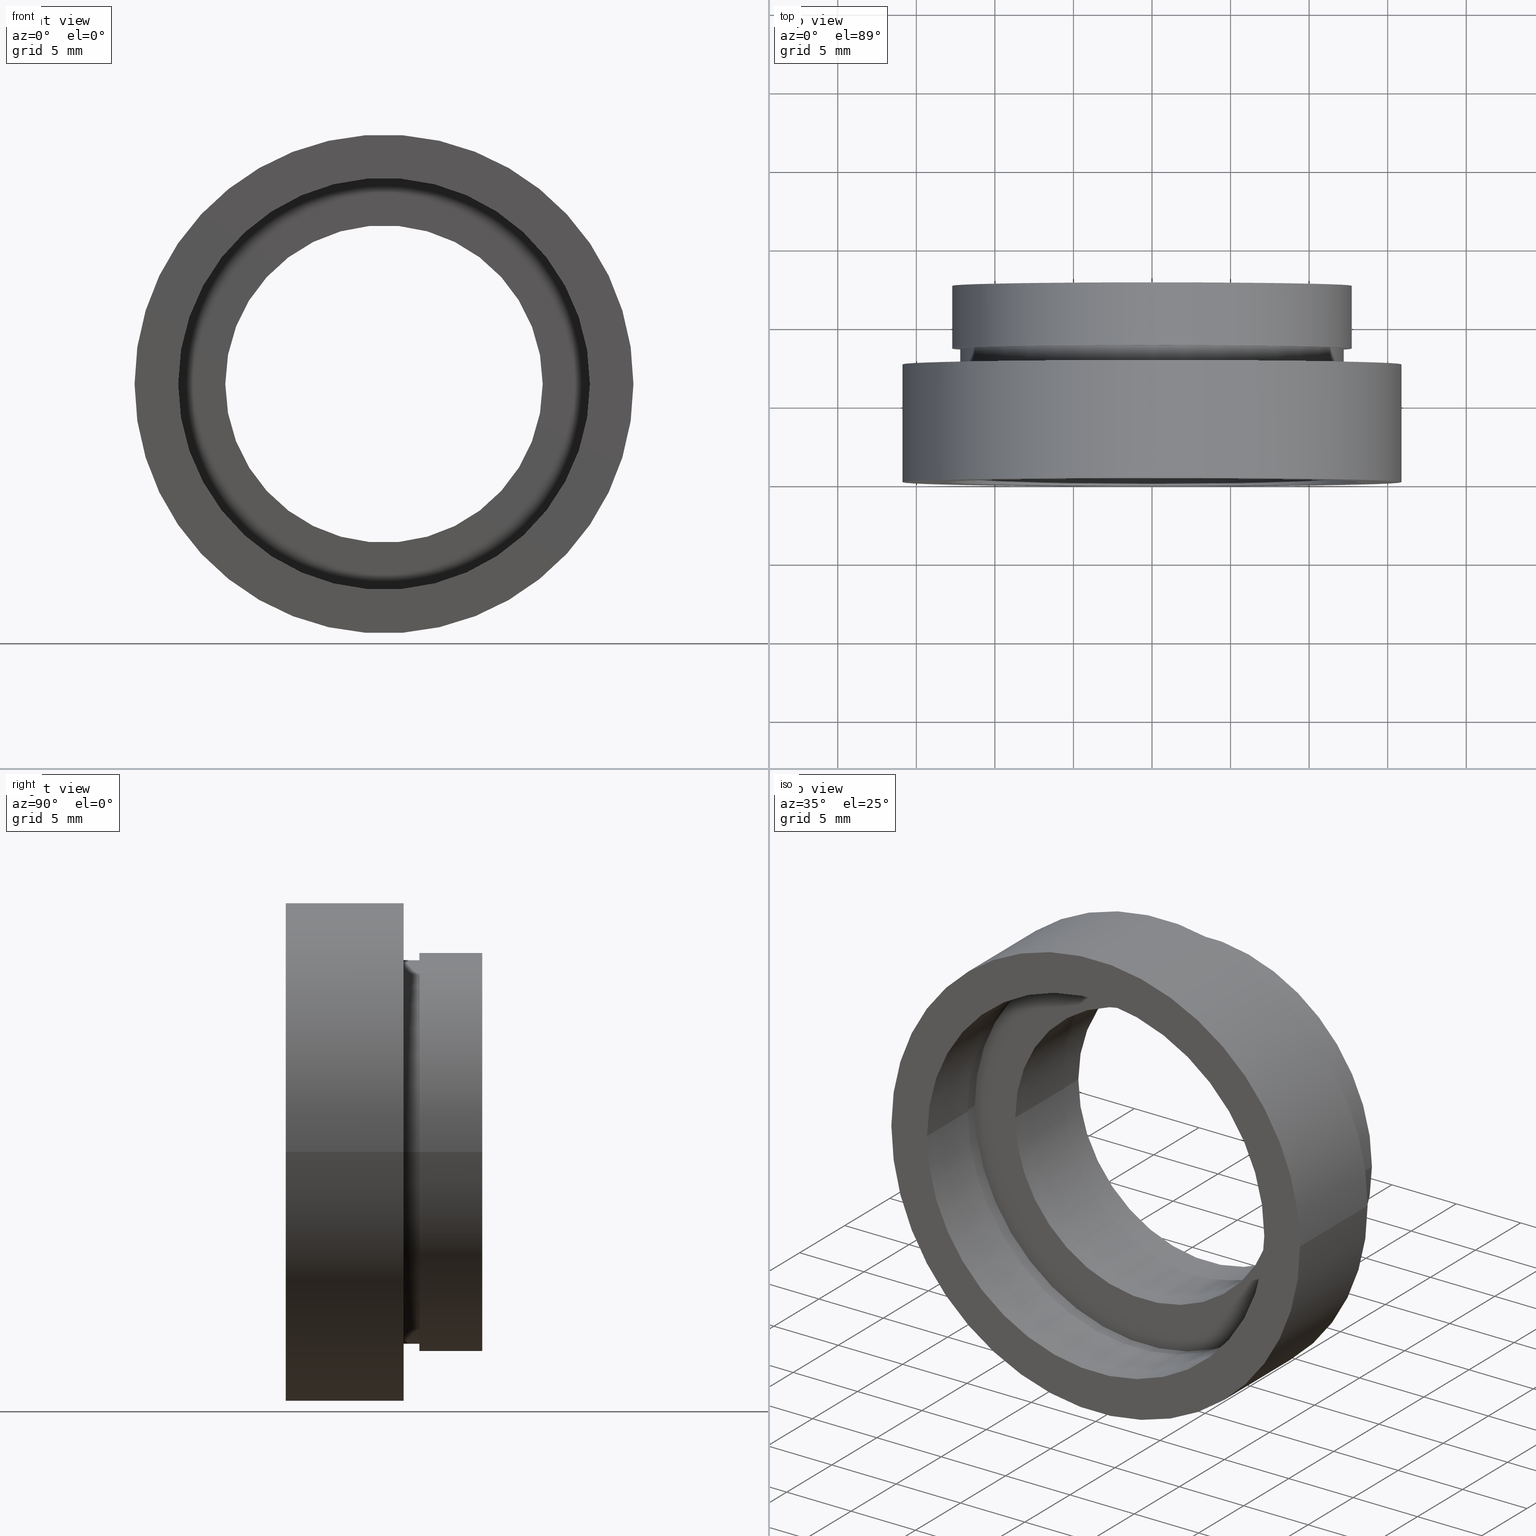
[diagram: canonical four-view strip — front | top / right | iso, engineering-drawing reading convention]
A machine part, canonical four-view strip (front | top / right | iso — engineering-drawing reading convention). The complete STEP part file that produces these views, byte-faithful:
ISO-10303-21;
HEADER;
FILE_DESCRIPTION (( 'STEP AP214' ),
    '1' );
FILE_NAME ('504123.STEP',
    '2019-10-09T01:25:20',
    ( '' ),
    ( '' ),
    'SwSTEP 2.0',
    'SolidWorks 2016',
    '' );
FILE_SCHEMA (( 'AUTOMOTIVE_DESIGN' ));
ENDSEC;

DATA;
#1 = SURFACE_STYLE_FILL_AREA ( #496 ) ;
#2 = EDGE_CURVE ( 'NONE', #27, #429, #486, .T. ) ;
#3 = DIRECTION ( 'NONE',  ( 0.0000000000000000000, 0.0000000000000000000, 1.000000000000000000 ) ) ;
#4 = SURFACE_STYLE_FILL_AREA ( #494 ) ;
#5 = COLOUR_RGB ( '',1.000000000000000000, 1.000000000000000000, 1.000000000000000000 ) ;
#6 = DIRECTION ( 'NONE',  ( -1.224646799147351000E-016, 1.000000000000000000, -0.0000000000000000000 ) ) ;
#7 = CARTESIAN_POINT ( 'NONE',  ( 10.10000000000000100, 5.499999999999997300, 1.236893267138826600E-015 ) ) ;
#8 = PRESENTATION_LAYER_ASSIGNMENT (  '', '', ( #334 ) ) ;
#9 = ORIENTED_EDGE ( 'NONE', *, *, #276, .T. ) ;
#10 = CARTESIAN_POINT ( 'NONE',  ( 0.0000000000000000000, 16.88601823708207700, 0.0000000000000000000 ) ) ;
#11 = DIRECTION ( 'NONE',  ( -1.224646799147351000E-016, 1.000000000000000000, -0.0000000000000000000 ) ) ;
#12 = ADVANCED_FACE ( 'NONE', ( #354 ), #20, .T. ) ;
#13 =( NAMED_UNIT ( * ) PLANE_ANGLE_UNIT ( ) SI_UNIT ( $, .RADIAN. ) );
#14 = FILL_AREA_STYLE_COLOUR ( '', #5 ) ;
#15 = DIRECTION ( 'NONE',  ( -1.224646799147351000E-016, 1.000000000000000000, -0.0000000000000000000 ) ) ;
#16 = CARTESIAN_POINT ( 'NONE',  ( 0.0000000000000000000, 16.88601823708207700, 0.0000000000000000000 ) ) ;
#17 =( GEOMETRIC_REPRESENTATION_CONTEXT ( 3 ) GLOBAL_UNCERTAINTY_ASSIGNED_CONTEXT ( ( #417 ) ) GLOBAL_UNIT_ASSIGNED_CONTEXT ( ( #120, #13, #398 ) ) REPRESENTATION_CONTEXT ( 'NONE', 'WORKASPACE' ) );
#18 = PRESENTATION_STYLE_ASSIGNMENT (( #330 ) ) ;
#19 = CARTESIAN_POINT ( 'NONE',  ( 5.371323195044473300E-016, 12.49999999999999600, 0.0000000000000000000 ) ) ;
#20 = CYLINDRICAL_SURFACE ( 'NONE', #343, 12.70999999999999900 ) ;
#21 = CARTESIAN_POINT ( 'NONE',  ( 12.70999999999999900, 16.88601823708207700, 1.556526081716285800E-015 ) ) ;
#22 = CIRCLE ( 'NONE', #285, 12.71000000000000100 ) ;
#23 = AXIS2_PLACEMENT_3D ( 'NONE', #38, #42, #43 ) ;
#24 = DIRECTION ( 'NONE',  ( -1.000000000000000000, 0.0000000000000000000, 0.0000000000000000000 ) ) ;
#25 = DIRECTION ( 'NONE',  ( 1.000000000000000000, 1.224646799147351000E-016, 0.0000000000000000000 ) ) ;
#26 = CIRCLE ( 'NONE', #406, 12.70999999999999900 ) ;
#27 = VERTEX_POINT ( 'NONE', #160 ) ;
#28 = SURFACE_STYLE_USAGE ( .BOTH. , #227 ) ;
#29 = VERTEX_POINT ( 'NONE', #447 ) ;
#30 = SURFACE_SIDE_STYLE ('',( #473 ) ) ;
#31 = CARTESIAN_POINT ( 'NONE',  ( 13.24999999999999800, 16.88601823708207700, 1.622657008870242700E-015 ) ) ;
#32 = DIRECTION ( 'NONE',  ( -1.224646799147351000E-016, 1.000000000000000000, -0.0000000000000000000 ) ) ;
#33 = ORIENTED_EDGE ( 'NONE', *, *, #399, .F. ) ;
#34 = EDGE_CURVE ( 'NONE', #257, #322, #510, .T. ) ;
#35 = FACE_OUTER_BOUND ( 'NONE', #303, .T. ) ;
#36 = EDGE_CURVE ( 'NONE', #482, #181, #284, .T. ) ;
#37 = FACE_OUTER_BOUND ( 'NONE', #87, .T. ) ;
#38 = CARTESIAN_POINT ( 'NONE',  ( 1.149455719078122700E-015, 7.499999999999998200, 0.0000000000000000000 ) ) ;
#39 = EDGE_LOOP ( 'NONE', ( #509, #400, #483, #504 ) ) ;
#40 = CARTESIAN_POINT ( 'NONE',  ( 1.516849758822328500E-015, 4.499999999999995600, 0.0000000000000000000 ) ) ;
#41 = AXIS2_PLACEMENT_3D ( 'NONE', #567, #419, #92 ) ;
#42 = DIRECTION ( 'NONE',  ( -1.224646799147351000E-016, 1.000000000000000000, -0.0000000000000000000 ) ) ;
#43 = DIRECTION ( 'NONE',  ( -1.000000000000000000, -1.421904488505579700E-016, 0.0000000000000000000 ) ) ;
#44 = VERTEX_POINT ( 'NONE', #164 ) ;
#45 = ORIENTED_EDGE ( 'NONE', *, *, #159, .T. ) ;
#46 = APPLICATION_PROTOCOL_DEFINITION ( 'draft international standard', 'automotive_design', 1998, #154 ) ;
#47 = EDGE_CURVE ( 'NONE', #155, #258, #526, .T. ) ;
#48 = DIRECTION ( 'NONE',  ( -1.224646799147351000E-016, 1.000000000000000000, -0.0000000000000000000 ) ) ;
#49 = DIRECTION ( 'NONE',  ( -1.224646799147351000E-016, 1.000000000000000000, -0.0000000000000000000 ) ) ;
#50 = CIRCLE ( 'NONE', #511, 12.19999999999999900 ) ;
#51 = DIRECTION ( 'NONE',  ( -1.224646799147351000E-016, 1.000000000000000000, -0.0000000000000000000 ) ) ;
#52 = AXIS2_PLACEMENT_3D ( 'NONE', #387, #49, #618 ) ;
#53 = UNCERTAINTY_MEASURE_WITH_UNIT (LENGTH_MEASURE( 1.000000000000000100E-005 ), #533, 'distance_accuracy_value', 'NONE');
#54 = ADVANCED_FACE ( 'NONE', ( #35 ), #365, .T. ) ;
#55 = CYLINDRICAL_SURFACE ( 'NONE', #109, 12.70999999999999900 ) ;
#56 = ORIENTED_EDGE ( 'NONE', *, *, #606, .F. ) ;
#57 =( NAMED_UNIT ( * ) PLANE_ANGLE_UNIT ( ) SI_UNIT ( $, .RADIAN. ) );
#58 = FILL_AREA_STYLE ('',( #14 ) ) ;
#59 = DIRECTION ( 'NONE',  ( -1.000000000000000000, 0.0000000000000000000, 0.0000000000000000000 ) ) ;
#60 = ADVANCED_FACE ( 'NONE', ( #147, #179 ), #220, .F. ) ;
#61 = AXIS2_PLACEMENT_3D ( 'NONE', #302, #350, #425 ) ;
#62 = ORIENTED_EDGE ( 'NONE', *, *, #193, .F. ) ;
#63 = ORIENTED_EDGE ( 'NONE', *, *, #528, .T. ) ;
#64 =( LENGTH_UNIT ( ) NAMED_UNIT ( * ) SI_UNIT ( .MILLI., .METRE. ) );
#65 = CARTESIAN_POINT ( 'NONE',  ( 0.0000000000000000000, 16.88601823708207700, 0.0000000000000000000 ) ) ;
#66 = CYLINDRICAL_SURFACE ( 'NONE', #185, 13.10000000000000000 ) ;
#67 = EDGE_CURVE ( 'NONE', #44, #361, #319, .T. ) ;
#68 = VECTOR ( 'NONE', #229, 1000.000000000000000 ) ;
#69 = CARTESIAN_POINT ( 'NONE',  ( 12.20000000000000100, 7.500000000000000000, 1.494069094959770900E-015 ) ) ;
#70 =( NAMED_UNIT ( * ) PLANE_ANGLE_UNIT ( ) SI_UNIT ( $, .RADIAN. ) );
#71 = EDGE_CURVE ( 'NONE', #438, #591, #107, .T. ) ;
#72 = LINE ( 'NONE', #290, #548 ) ;
#73 = ORIENTED_EDGE ( 'NONE', *, *, #403, .F. ) ;
#74 = ORIENTED_EDGE ( 'NONE', *, *, #495, .T. ) ;
#75 = PLANE ( 'NONE',  #355 ) ;
#76 =( LENGTH_UNIT ( ) NAMED_UNIT ( * ) SI_UNIT ( .MILLI., .METRE. ) );
#77 = DIRECTION ( 'NONE',  ( -1.224646799147351000E-016, 1.000000000000000000, -0.0000000000000000000 ) ) ;
#78 = AXIS2_PLACEMENT_3D ( 'NONE', #581, #502, #369 ) ;
#79 = DIRECTION ( 'NONE',  ( 1.224646799147351000E-016, -1.000000000000000000, 0.0000000000000000000 ) ) ;
#80 = ORIENTED_EDGE ( 'NONE', *, *, #572, .F. ) ;
#81 = ORIENTED_EDGE ( 'NONE', *, *, #410, .F. ) ;
#82 = AXIS2_PLACEMENT_3D ( 'NONE', #549, #329, #174 ) ;
#83 = FACE_OUTER_BOUND ( 'NONE', #223, .T. ) ;
#84 = CIRCLE ( 'NONE', #41, 13.25000000000000000 ) ;
#85 = MANIFOLD_SOLID_BREP ( '��ת1', #235 ) ;
#86 = ORIENTED_EDGE ( 'NONE', *, *, #379, .F. ) ;
#87 = EDGE_LOOP ( 'NONE', ( #231, #90 ) ) ;
#88 = ADVANCED_FACE ( 'NONE', ( #357, #37 ), #274, .F. ) ;
#89 = PRESENTATION_LAYER_ASSIGNMENT (  '', '', ( #263 ) ) ;
#90 = ORIENTED_EDGE ( 'NONE', *, *, #193, .T. ) ;
#91 = CARTESIAN_POINT ( 'NONE',  ( 15.87500000000000000, -1.944126793646428200E-016, 0.0000000000000000000 ) ) ;
#92 = DIRECTION ( 'NONE',  ( -1.000000000000000000, -1.309225264888156400E-016, 0.0000000000000000000 ) ) ;
#93 = DIRECTION ( 'NONE',  ( -1.000000000000000000, -1.421904488505579700E-016, 0.0000000000000000000 ) ) ;
#94 = UNCERTAINTY_MEASURE_WITH_UNIT (LENGTH_MEASURE( 1.000000000000000100E-005 ), #404, 'distance_accuracy_value', 'NONE');
#95 = EDGE_LOOP ( 'NONE', ( #288, #337 ) ) ;
#96 = EDGE_CURVE ( 'NONE', #466, #29, #130, .T. ) ;
#97 = PRESENTATION_LAYER_ASSIGNMENT (  '', '', ( #176 ) ) ;
#98 = ADVANCED_FACE ( 'NONE', ( #336 ), #545, .F. ) ;
#99 = DIRECTION ( 'NONE',  ( -1.000000000000000000, -8.587739980083203700E-017, 0.0000000000000000000 ) ) ;
#100 = LINE ( 'NONE', #21, #68 ) ;
#101 = AXIS2_PLACEMENT_3D ( 'NONE', #230, #77, #358 ) ;
#102 = ORIENTED_EDGE ( 'NONE', *, *, #507, .T. ) ;
#103 = FILL_AREA_STYLE_COLOUR ( '', #541 ) ;
#104 = CARTESIAN_POINT ( 'NONE',  ( 1.516849758822328500E-015, 4.499999999999995600, 0.0000000000000000000 ) ) ;
#105 = ORIENTED_EDGE ( 'NONE', *, *, #470, .F. ) ;
#106 = AXIS2_PLACEMENT_3D ( 'NONE', #213, #585, #589 ) ;
#107 = CIRCLE ( 'NONE', #82, 12.70999999999999900 ) ;
#108 = DIRECTION ( 'NONE',  ( -1.000000000000000000, -2.185478394931410600E-016, 0.0000000000000000000 ) ) ;
#109 = AXIS2_PLACEMENT_3D ( 'NONE', #225, #599, #24 ) ;
#110 = DIRECTION ( 'NONE',  ( -1.000000000000000000, -1.309225264888156400E-016, 0.0000000000000000000 ) ) ;
#111 = VERTEX_POINT ( 'NONE', #362 ) ;
#112 = DIRECTION ( 'NONE',  ( 1.224646799147351000E-016, -1.000000000000000000, 0.0000000000000000000 ) ) ;
#113 = DIRECTION ( 'NONE',  ( -1.000000000000000000, -1.092739197465705300E-016, 0.0000000000000000000 ) ) ;
#114 = FACE_OUTER_BOUND ( 'NONE', #538, .T. ) ;
#115 = DIRECTION ( 'NONE',  ( -1.224646799147351000E-016, 1.000000000000000000, -0.0000000000000000000 ) ) ;
#116 = PRESENTATION_LAYER_ASSIGNMENT (  '', '', ( #238 ) ) ;
#117 = DIRECTION ( 'NONE',  ( -1.000000000000000000, 0.0000000000000000000, 0.0000000000000000000 ) ) ;
#118 = VERTEX_POINT ( 'NONE', #7 ) ;
#119 = CARTESIAN_POINT ( 'NONE',  ( 13.10000000000000100, 1.604287306883029700E-015, 1.604287306883032600E-015 ) ) ;
#120 =( LENGTH_UNIT ( ) NAMED_UNIT ( * ) SI_UNIT ( .MILLI., .METRE. ) );
#121 = CARTESIAN_POINT ( 'NONE',  ( 0.0000000000000000000, 16.88601823708207700, 0.0000000000000000000 ) ) ;
#122 = CARTESIAN_POINT ( 'NONE',  ( 15.87500000000000000, 16.88601823708208000, 1.944126793646423200E-015 ) ) ;
#123 = CARTESIAN_POINT ( 'NONE',  ( 15.87500000000000000, 7.500000000000000000, 1.944126793646423200E-015 ) ) ;
#124 = DIRECTION ( 'NONE',  ( 1.000000000000000000, 1.224646799147351000E-016, 0.0000000000000000000 ) ) ;
#125 = ORIENTED_EDGE ( 'NONE', *, *, #441, .F. ) ;
#126 = ORIENTED_EDGE ( 'NONE', *, *, #291, .F. ) ;
#127 = CARTESIAN_POINT ( 'NONE',  ( 5.371323195044473300E-016, 12.49999999999999600, 0.0000000000000000000 ) ) ;
#128 = EDGE_CURVE ( 'NONE', #429, #361, #413, .T. ) ;
#129 = AXIS2_PLACEMENT_3D ( 'NONE', #127, #503, #316 ) ;
#130 = CIRCLE ( 'NONE', #458, 12.19999999999999900 ) ;
#131 = EDGE_CURVE ( 'NONE', #195, #583, #385, .T. ) ;
#132 = CIRCLE ( 'NONE', #52, 15.87499999999999600 ) ;
#133 = STYLED_ITEM ( 'NONE', ( #607 ), #148 ) ;
#134 = ORIENTED_EDGE ( 'NONE', *, *, #441, .T. ) ;
#135 = ADVANCED_BREP_SHAPE_REPRESENTATION ( '504123', ( #85, #368 ), #198 ) ;
#136 = COLOUR_RGB ( '',1.000000000000000000, 1.000000000000000000, 1.000000000000000000 ) ;
#137 = EDGE_CURVE ( 'NONE', #118, #531, #620, .T. ) ;
#138 = VECTOR ( 'NONE', #388, 1000.000000000000000 ) ;
#139 = EDGE_LOOP ( 'NONE', ( #360, #134, #45, #624 ) ) ;
#140 = ORIENTED_EDGE ( 'NONE', *, *, #204, .F. ) ;
#141 = FILL_AREA_STYLE ('',( #103 ) ) ;
#142 = CARTESIAN_POINT ( 'NONE',  ( 13.10000000000000000, 16.88601823708207700, 1.604287306883032600E-015 ) ) ;
#143 = STYLED_ITEM ( 'NONE', ( #18 ), #437 ) ;
#144 = CARTESIAN_POINT ( 'NONE',  ( -12.19999999999999800, 7.499999999999996400, 0.0000000000000000000 ) ) ;
#145 = DIRECTION ( 'NONE',  ( -1.224646799147351000E-016, 1.000000000000000000, -0.0000000000000000000 ) ) ;
#146 = MECHANICAL_DESIGN_GEOMETRIC_PRESENTATION_REPRESENTATION (  '', ( #238 ), #182 ) ;
#147 = FACE_BOUND ( 'NONE', #186, .T. ) ;
#148 = ADVANCED_FACE ( 'NONE', ( #460 ), #183, .F. ) ;
#149 = CARTESIAN_POINT ( 'NONE',  ( -10.09999999999999800, 5.499999999999995600, 0.0000000000000000000 ) ) ;
#150 = PRODUCT_RELATED_PRODUCT_CATEGORY ( 'part', '', ( #177 ) ) ;
#151 = CARTESIAN_POINT ( 'NONE',  ( -13.09999999999999800, 4.499999999999993800, 0.0000000000000000000 ) ) ;
#152 = VECTOR ( 'NONE', #527, 1000.000000000000000 ) ;
#153 = ORIENTED_EDGE ( 'NONE', *, *, #490, .T. ) ;
#154 = APPLICATION_CONTEXT ( 'automotive_design' ) ;
#155 = VERTEX_POINT ( 'NONE', #484 ) ;
#156 = CARTESIAN_POINT ( 'NONE',  ( 5.371323195044474300E-016, 12.49999999999999600, 0.0000000000000000000 ) ) ;
#157 = ADVANCED_FACE ( 'NONE', ( #328 ), #335, .F. ) ;
#158 = DIRECTION ( 'NONE',  ( -1.224646799147351000E-016, 1.000000000000000000, -0.0000000000000000000 ) ) ;
#159 = EDGE_CURVE ( 'NONE', #467, #29, #617, .T. ) ;
#160 = CARTESIAN_POINT ( 'NONE',  ( -15.87499999999999300, -5.413573745600033100E-015, 0.0000000000000000000 ) ) ;
#161 = AXIS2_PLACEMENT_3D ( 'NONE', #104, #477, #202 ) ;
#162 = CARTESIAN_POINT ( 'NONE',  ( 1.149455719078122700E-015, 7.499999999999998200, 0.0000000000000000000 ) ) ;
#163 = CIRCLE ( 'NONE', #433, 12.19999999999999900 ) ;
#164 = CARTESIAN_POINT ( 'NONE',  ( 15.87500000000000000, -1.525320158307194900E-015, 1.944126793646423200E-015 ) ) ;
#165 = VECTOR ( 'NONE', #48, 1000.000000000000000 ) ;
#166 = AXIS2_PLACEMENT_3D ( 'NONE', #401, #215, #308 ) ;
#167 = FILL_AREA_STYLE_COLOUR ( '', #418 ) ;
#168 = AXIS2_PLACEMENT_3D ( 'NONE', #489, #535, #314 ) ;
#169 = SURFACE_SIDE_STYLE ('',( #588 ) ) ;
#170 = LINE ( 'NONE', #142, #608 ) ;
#171 = EDGE_LOOP ( 'NONE', ( #602, #564 ) ) ;
#172 = CARTESIAN_POINT ( 'NONE',  ( 12.71000000000000300, 12.49999999999999800, 1.556526081716286200E-015 ) ) ;
#173 = ORIENTED_EDGE ( 'NONE', *, *, #376, .F. ) ;
#174 = DIRECTION ( 'NONE',  ( -1.000000000000000000, -1.364849312334230700E-016, 0.0000000000000000000 ) ) ;
#175 =( LENGTH_UNIT ( ) NAMED_UNIT ( * ) SI_UNIT ( .MILLI., .METRE. ) );
#176 = STYLED_ITEM ( 'NONE', ( #444 ), #305 ) ;
#177 = PRODUCT ( '504123', '504123', '', ( #214 ) ) ;
#178 =( NAMED_UNIT ( * ) PLANE_ANGLE_UNIT ( ) SI_UNIT ( $, .RADIAN. ) );
#179 = FACE_OUTER_BOUND ( 'NONE', #565, .T. ) ;
#180 = FACE_OUTER_BOUND ( 'NONE', #211, .T. ) ;
#181 = VERTEX_POINT ( 'NONE', #259 ) ;
#182 =( GEOMETRIC_REPRESENTATION_CONTEXT ( 3 ) GLOBAL_UNCERTAINTY_ASSIGNED_CONTEXT ( ( #256 ) ) GLOBAL_UNIT_ASSIGNED_CONTEXT ( ( #175, #409, #325 ) ) REPRESENTATION_CONTEXT ( 'NONE', 'WORKASPACE' ) );
#183 = CYLINDRICAL_SURFACE ( 'NONE', #598, 13.10000000000000000 ) ;
#184 = FACE_OUTER_BOUND ( 'NONE', #203, .T. ) ;
#185 = AXIS2_PLACEMENT_3D ( 'NONE', #221, #554, #448 ) ;
#186 = EDGE_LOOP ( 'NONE', ( #140, #125 ) ) ;
#187 = ORIENTED_EDGE ( 'NONE', *, *, #528, .F. ) ;
#188 = SURFACE_SIDE_STYLE ('',( #578 ) ) ;
#189 = CARTESIAN_POINT ( 'NONE',  ( -15.87500000000000000, 7.499999999999996400, 0.0000000000000000000 ) ) ;
#190 = FACE_OUTER_BOUND ( 'NONE', #139, .T. ) ;
#191 = LINE ( 'NONE', #31, #345 ) ;
#192 =( NAMED_UNIT ( * ) PLANE_ANGLE_UNIT ( ) SI_UNIT ( $, .RADIAN. ) );
#193 = EDGE_CURVE ( 'NONE', #322, #257, #22, .T. ) ;
#194 = COLOUR_RGB ( '',1.000000000000000000, 1.000000000000000000, 1.000000000000000000 ) ;
#195 = VERTEX_POINT ( 'NONE', #309 ) ;
#196 = ORIENTED_EDGE ( 'NONE', *, *, #490, .F. ) ;
#197 = CARTESIAN_POINT ( 'NONE',  ( 10.10000000000000000, 12.49999999999999800, 1.236893267138826600E-015 ) ) ;
#198 =( GEOMETRIC_REPRESENTATION_CONTEXT ( 3 ) GLOBAL_UNCERTAINTY_ASSIGNED_CONTEXT ( ( #241 ) ) GLOBAL_UNIT_ASSIGNED_CONTEXT ( ( #356, #57, #389 ) ) REPRESENTATION_CONTEXT ( 'NONE', 'WORKASPACE' ) );
#199 = PRESENTATION_STYLE_ASSIGNMENT (( #450 ) ) ;
#200 = PRESENTATION_LAYER_ASSIGNMENT (  '', '', ( #133 ) ) ;
#201 = CARTESIAN_POINT ( 'NONE',  ( 1.394385078907593200E-015, 5.499999999999996400, 0.0000000000000000000 ) ) ;
#202 = DIRECTION ( 'NONE',  ( -1.000000000000000000, -1.324216393875425300E-016, 0.0000000000000000000 ) ) ;
#203 = EDGE_LOOP ( 'NONE', ( #80, #313 ) ) ;
#204 = EDGE_CURVE ( 'NONE', #467, #391, #50, .T. ) ;
#205 = ORIENTED_EDGE ( 'NONE', *, *, #410, .T. ) ;
#206 = SURFACE_STYLE_USAGE ( .BOTH. , #426 ) ;
#207 = ADVANCED_FACE ( 'NONE', ( #506, #114 ), #488, .F. ) ;
#208 = MECHANICAL_DESIGN_GEOMETRIC_PRESENTATION_REPRESENTATION (  '', ( #176 ), #442 ) ;
#209 = DIRECTION ( 'NONE',  ( -1.000000000000000000, 0.0000000000000000000, 0.0000000000000000000 ) ) ;
#210 = ORIENTED_EDGE ( 'NONE', *, *, #461, .T. ) ;
#211 = EDGE_LOOP ( 'NONE', ( #196, #332 ) ) ;
#212 = SURFACE_SIDE_STYLE ('',( #574 ) ) ;
#213 = CARTESIAN_POINT ( 'NONE',  ( 5.371323195044474300E-016, 12.49999999999999600, 0.0000000000000000000 ) ) ;
#214 = PRODUCT_CONTEXT ( 'NONE', #154, 'mechanical' ) ;
#215 = DIRECTION ( 'NONE',  ( -1.224646799147351000E-016, 1.000000000000000000, -0.0000000000000000000 ) ) ;
#216 = CYLINDRICAL_SURFACE ( 'NONE', #381, 13.24999999999999800 ) ;
#217 =( NAMED_UNIT ( * ) PLANE_ANGLE_UNIT ( ) SI_UNIT ( $, .RADIAN. ) );
#218 = STYLED_ITEM ( 'NONE', ( #199 ), #12 ) ;
#219 = PRESENTATION_STYLE_ASSIGNMENT (( #372 ) ) ;
#220 = PLANE ( 'NONE',  #333 ) ;
#221 = CARTESIAN_POINT ( 'NONE',  ( 0.0000000000000000000, 16.88601823708207700, 0.0000000000000000000 ) ) ;
#222 = DIRECTION ( 'NONE',  ( -1.224646799147351000E-016, 1.000000000000000000, -0.0000000000000000000 ) ) ;
#223 = EDGE_LOOP ( 'NONE', ( #373, #310, #432, #81 ) ) ;
#224 = EDGE_LOOP ( 'NONE', ( #275, #295 ) ) ;
#225 = CARTESIAN_POINT ( 'NONE',  ( 0.0000000000000000000, 16.88601823708207700, 0.0000000000000000000 ) ) ;
#226 = DIRECTION ( 'NONE',  ( -1.224646799147351000E-016, 1.000000000000000000, -0.0000000000000000000 ) ) ;
#227 = SURFACE_SIDE_STYLE ('',( #4 ) ) ;
#228 = FILL_AREA_STYLE ('',( #499 ) ) ;
#229 = DIRECTION ( 'NONE',  ( -1.224646799147351000E-016, 1.000000000000000000, -0.0000000000000000000 ) ) ;
#230 = CARTESIAN_POINT ( 'NONE',  ( 0.0000000000000000000, 16.88601823708207700, 0.0000000000000000000 ) ) ;
#231 = ORIENTED_EDGE ( 'NONE', *, *, #34, .T. ) ;
#232 = PRODUCT_DEFINITION ( 'δ֪', '', #476, #237 ) ;
#233 = CYLINDRICAL_SURFACE ( 'NONE', #532, 15.87500000000000000 ) ;
#234 = FACE_BOUND ( 'NONE', #301, .T. ) ;
#235 = CLOSED_SHELL ( 'NONE', ( #242, #253, #359, #437, #250, #305, #435, #148, #207, #157, #346, #98, #88, #12, #430, #307, #60, #54 ) ) ;
#236 = ORIENTED_EDGE ( 'NONE', *, *, #2, .T. ) ;
#237 = PRODUCT_DEFINITION_CONTEXT ( 'detailed design', #315, 'design' ) ;
#238 = STYLED_ITEM ( 'NONE', ( #219 ), #85 ) ;
#239 = CYLINDRICAL_SURFACE ( 'NONE', #394, 12.19999999999999900 ) ;
#240 = DIRECTION ( 'NONE',  ( -1.000000000000000000, -1.224646799147351000E-016, 0.0000000000000000000 ) ) ;
#241 = UNCERTAINTY_MEASURE_WITH_UNIT (LENGTH_MEASURE( 1.000000000000000100E-005 ), #356, 'distance_accuracy_value', 'NONE');
#242 = ADVANCED_FACE ( 'NONE', ( #544 ), #233, .T. ) ;
#243 = AXIS2_PLACEMENT_3D ( 'NONE', #40, #468, #421 ) ;
#244 = EDGE_LOOP ( 'NONE', ( #570, #609, #525, #382 ) ) ;
#245 = CARTESIAN_POINT ( 'NONE',  ( 1.026991039163387700E-015, 8.499999999999998200, 0.0000000000000000000 ) ) ;
#246 = CARTESIAN_POINT ( 'NONE',  ( 0.0000000000000000000, 0.0000000000000000000, 0.0000000000000000000 ) ) ;
#247 = STYLED_ITEM ( 'NONE', ( #264 ), #98 ) ;
#248 = LINE ( 'NONE', #344, #152 ) ;
#249 = ORIENTED_EDGE ( 'NONE', *, *, #563, .T. ) ;
#250 = ADVANCED_FACE ( 'NONE', ( #521 ), #216, .F. ) ;
#251 = AXIS2_PLACEMENT_3D ( 'NONE', #434, #586, #304 ) ;
#252 = CARTESIAN_POINT ( 'NONE',  ( 1.149455719078122700E-015, 7.499999999999998200, 0.0000000000000000000 ) ) ;
#253 = ADVANCED_FACE ( 'NONE', ( #487 ), #471, .T. ) ;
#254 = CIRCLE ( 'NONE', #611, 13.10000000000000000 ) ;
#255 =( NAMED_UNIT ( * ) SI_UNIT ( $, .STERADIAN. ) SOLID_ANGLE_UNIT ( ) );
#256 = UNCERTAINTY_MEASURE_WITH_UNIT (LENGTH_MEASURE( 1.000000000000000100E-005 ), #175, 'distance_accuracy_value', 'NONE');
#257 = VERTEX_POINT ( 'NONE', #272 ) ;
#258 = VERTEX_POINT ( 'NONE', #119 ) ;
#259 = CARTESIAN_POINT ( 'NONE',  ( -10.10000000000000000, 12.49999999999999500, 0.0000000000000000000 ) ) ;
#260 = PRESENTATION_STYLE_ASSIGNMENT (( #371 ) ) ;
#261 = CARTESIAN_POINT ( 'NONE',  ( 1.149455719078122700E-015, 7.499999999999998200, 0.0000000000000000000 ) ) ;
#262 = EDGE_CURVE ( 'NONE', #583, #342, #191, .T. ) ;
#263 = STYLED_ITEM ( 'NONE', ( #422 ), #135 ) ;
#264 = PRESENTATION_STYLE_ASSIGNMENT (( #497 ) ) ;
#265 = DIRECTION ( 'NONE',  ( -1.224646799147351000E-016, 1.000000000000000000, -0.0000000000000000000 ) ) ;
#266 = CIRCLE ( 'NONE', #23, 12.19999999999999900 ) ;
#267 = ORIENTED_EDGE ( 'NONE', *, *, #268, .F. ) ;
#268 = EDGE_CURVE ( 'NONE', #195, #287, #395, .T. ) ;
#269 =( NAMED_UNIT ( * ) PLANE_ANGLE_UNIT ( ) SI_UNIT ( $, .RADIAN. ) );
#270 = AXIS2_PLACEMENT_3D ( 'NONE', #19, #15, #595 ) ;
#271 = FILL_AREA_STYLE_COLOUR ( '', #348 ) ;
#272 = CARTESIAN_POINT ( 'NONE',  ( -12.71000000000000100, 12.49999999999999500, 0.0000000000000000000 ) ) ;
#273 = CIRCLE ( 'NONE', #161, 13.10000000000000000 ) ;
#274 = PLANE ( 'NONE',  #424 ) ;
#275 = ORIENTED_EDGE ( 'NONE', *, *, #363, .F. ) ;
#276 = EDGE_CURVE ( 'NONE', #438, #322, #100, .T. ) ;
#277 = DIRECTION ( 'NONE',  ( -1.000000000000000000, -1.224646799147351000E-016, 0.0000000000000000000 ) ) ;
#278 = DIRECTION ( 'NONE',  ( -1.000000000000000000, -1.421904488505579700E-016, 0.0000000000000000000 ) ) ;
#279 = SURFACE_SIDE_STYLE ('',( #501 ) ) ;
#280 = FACE_OUTER_BOUND ( 'NONE', #171, .T. ) ;
#281 = VECTOR ( 'NONE', #451, 1000.000000000000000 ) ;
#282 = ORIENTED_EDGE ( 'NONE', *, *, #262, .T. ) ;
#283 = MECHANICAL_DESIGN_GEOMETRIC_PRESENTATION_REPRESENTATION (  '', ( #247 ), #317 ) ;
#284 = CIRCLE ( 'NONE', #270, 10.10000000000000000 ) ;
#285 = AXIS2_PLACEMENT_3D ( 'NONE', #156, #397, #481 ) ;
#286 = VECTOR ( 'NONE', #298, 1000.000000000000000 ) ;
#287 = VERTEX_POINT ( 'NONE', #498 ) ;
#288 = ORIENTED_EDGE ( 'NONE', *, *, #470, .T. ) ;
#289 = DIRECTION ( 'NONE',  ( -1.224646799147351000E-016, 1.000000000000000000, -0.0000000000000000000 ) ) ;
#290 = CARTESIAN_POINT ( 'NONE',  ( -13.10000000000000000, 16.88601823708207700, 0.0000000000000000000 ) ) ;
#291 = EDGE_CURVE ( 'NONE', #591, #257, #556, .T. ) ;
#292 =( NAMED_UNIT ( * ) SI_UNIT ( $, .STERADIAN. ) SOLID_ANGLE_UNIT ( ) );
#293 = MECHANICAL_DESIGN_GEOMETRIC_PRESENTATION_REPRESENTATION (  '', ( #263 ), #364 ) ;
#294 = COLOUR_RGB ( '',1.000000000000000000, 1.000000000000000000, 1.000000000000000000 ) ;
#295 = ORIENTED_EDGE ( 'NONE', *, *, #36, .F. ) ;
#296 = DIRECTION ( 'NONE',  ( -1.000000000000000000, -1.364849312334230700E-016, 0.0000000000000000000 ) ) ;
#297 =( GEOMETRIC_REPRESENTATION_CONTEXT ( 3 ) GLOBAL_UNCERTAINTY_ASSIGNED_CONTEXT ( ( #619 ) ) GLOBAL_UNIT_ASSIGNED_CONTEXT ( ( #76, #269, #596 ) ) REPRESENTATION_CONTEXT ( 'NONE', 'WORKASPACE' ) );
#298 = DIRECTION ( 'NONE',  ( -1.224646799147351000E-016, 1.000000000000000000, -0.0000000000000000000 ) ) ;
#299 = VECTOR ( 'NONE', #553, 1000.000000000000000 ) ;
#300 = CARTESIAN_POINT ( 'NONE',  ( 10.10000000000000000, 16.88601823708207700, 1.236893267138826600E-015 ) ) ;
#301 = EDGE_LOOP ( 'NONE', ( #408, #210 ) ) ;
#302 = CARTESIAN_POINT ( 'NONE',  ( 2.067940818438636500E-015, -3.469446951953614200E-015, 0.0000000000000000000 ) ) ;
#303 = EDGE_LOOP ( 'NONE', ( #560, #102, #236, #187 ) ) ;
#304 = DIRECTION ( 'NONE',  ( 1.000000000000000000, 1.224646799147351000E-016, 0.0000000000000000000 ) ) ;
#305 = ADVANCED_FACE ( 'NONE', ( #83 ), #66, .F. ) ;
#306 = AXIS2_PLACEMENT_3D ( 'NONE', #536, #393, #209 ) ;
#307 = ADVANCED_FACE ( 'NONE', ( #190 ), #239, .T. ) ;
#308 = DIRECTION ( 'NONE',  ( -1.000000000000000000, -8.587739980083203700E-017, 0.0000000000000000000 ) ) ;
#309 = CARTESIAN_POINT ( 'NONE',  ( -13.24999999999999600, 4.499999999999993800, 0.0000000000000000000 ) ) ;
#310 = ORIENTED_EDGE ( 'NONE', *, *, #399, .T. ) ;
#311 = CARTESIAN_POINT ( 'NONE',  ( 0.0000000000000000000, 16.88601823708207700, 0.0000000000000000000 ) ) ;
#312 = AXIS2_PLACEMENT_3D ( 'NONE', #311, #318, #445 ) ;
#313 = ORIENTED_EDGE ( 'NONE', *, *, #71, .F. ) ;
#314 = DIRECTION ( 'NONE',  ( -1.000000000000000000, -1.224646799147351000E-016, 0.0000000000000000000 ) ) ;
#315 = APPLICATION_CONTEXT ( 'automotive_design' ) ;
#316 = DIRECTION ( 'NONE',  ( -1.000000000000000000, -1.717547996016640700E-016, 0.0000000000000000000 ) ) ;
#317 =( GEOMETRIC_REPRESENTATION_CONTEXT ( 3 ) GLOBAL_UNCERTAINTY_ASSIGNED_CONTEXT ( ( #459 ) ) GLOBAL_UNIT_ASSIGNED_CONTEXT ( ( #453, #178, #505 ) ) REPRESENTATION_CONTEXT ( 'NONE', 'WORKASPACE' ) );
#318 = DIRECTION ( 'NONE',  ( -1.224646799147351000E-016, 1.000000000000000000, -0.0000000000000000000 ) ) ;
#319 = LINE ( 'NONE', #122, #299 ) ;
#320 = CARTESIAN_POINT ( 'NONE',  ( 0.0000000000000000000, 16.88601823708207700, 0.0000000000000000000 ) ) ;
#321 = FACE_OUTER_BOUND ( 'NONE', #244, .T. ) ;
#322 = VERTEX_POINT ( 'NONE', #172 ) ;
#323 = CARTESIAN_POINT ( 'NONE',  ( 10.10000000000000100, 5.499999999999998200, 0.0000000000000000000 ) ) ;
#324 = ORIENTED_EDGE ( 'NONE', *, *, #291, .T. ) ;
#325 =( NAMED_UNIT ( * ) SI_UNIT ( $, .STERADIAN. ) SOLID_ANGLE_UNIT ( ) );
#326 = DIRECTION ( 'NONE',  ( -1.224646799147351000E-016, 1.000000000000000000, -0.0000000000000000000 ) ) ;
#327 = CARTESIAN_POINT ( 'NONE',  ( 10.10000000000000000, 12.49999999999999800, 0.0000000000000000000 ) ) ;
#328 = FACE_OUTER_BOUND ( 'NONE', #39, .T. ) ;
#329 = DIRECTION ( 'NONE',  ( -1.224646799147351000E-016, 1.000000000000000000, -0.0000000000000000000 ) ) ;
#330 = SURFACE_STYLE_USAGE ( .BOTH. , #279 ) ;
#331 = EDGE_LOOP ( 'NONE', ( #153, #449, #378, #594 ) ) ;
#332 = ORIENTED_EDGE ( 'NONE', *, *, #507, .F. ) ;
#333 = AXIS2_PLACEMENT_3D ( 'NONE', #396, #112, #25 ) ;
#334 = STYLED_ITEM ( 'NONE', ( #260 ), #359 ) ;
#335 = CYLINDRICAL_SURFACE ( 'NONE', #306, 13.24999999999999800 ) ;
#336 = FACE_OUTER_BOUND ( 'NONE', #341, .T. ) ;
#337 = ORIENTED_EDGE ( 'NONE', *, *, #137, .T. ) ;
#338 = CARTESIAN_POINT ( 'NONE',  ( 1.516849758822328500E-015, 4.499999999999995600, 0.0000000000000000000 ) ) ;
#339 = CARTESIAN_POINT ( 'NONE',  ( 12.71000000000000100, 8.500000000000000000, 0.0000000000000000000 ) ) ;
#340 = CARTESIAN_POINT ( 'NONE',  ( 12.20000000000000100, 8.500000000000000000, 1.494069094959770900E-015 ) ) ;
#341 = EDGE_LOOP ( 'NONE', ( #56, #105, #249, #569 ) ) ;
#342 = VERTEX_POINT ( 'NONE', #367 ) ;
#343 = AXIS2_PLACEMENT_3D ( 'NONE', #121, #222, #117 ) ;
#344 = CARTESIAN_POINT ( 'NONE',  ( -10.10000000000000000, 16.88601823708207700, 0.0000000000000000000 ) ) ;
#345 = VECTOR ( 'NONE', #402, 1000.000000000000000 ) ;
#346 = ADVANCED_FACE ( 'NONE', ( #280, #543 ), #75, .F. ) ;
#347 = CARTESIAN_POINT ( 'NONE',  ( -15.87500000000000000, 16.88601823708207300, 0.0000000000000000000 ) ) ;
#348 = COLOUR_RGB ( '',1.000000000000000000, 1.000000000000000000, 1.000000000000000000 ) ;
#349 = MECHANICAL_DESIGN_GEOMETRIC_PRESENTATION_REPRESENTATION (  '', ( #218 ), #17 ) ;
#350 = DIRECTION ( 'NONE',  ( -1.224646799147351000E-016, 1.000000000000000000, -0.0000000000000000000 ) ) ;
#351 = EDGE_LOOP ( 'NONE', ( #386, #9, #455, #126 ) ) ;
#352 = ORIENTED_EDGE ( 'NONE', *, *, #593, .F. ) ;
#353 = CARTESIAN_POINT ( 'NONE',  ( 12.19999999999999900, 16.88601823708207700, 1.494069094959770900E-015 ) ) ;
#354 = FACE_OUTER_BOUND ( 'NONE', #415, .T. ) ;
#355 = AXIS2_PLACEMENT_3D ( 'NONE', #323, #370, #277 ) ;
#356 =( LENGTH_UNIT ( ) NAMED_UNIT ( * ) SI_UNIT ( .MILLI., .METRE. ) );
#357 = FACE_BOUND ( 'NONE', #224, .T. ) ;
#358 = DIRECTION ( 'NONE',  ( -1.000000000000000000, 0.0000000000000000000, 0.0000000000000000000 ) ) ;
#359 = ADVANCED_FACE ( 'NONE', ( #478 ), #55, .T. ) ;
#360 = ORIENTED_EDGE ( 'NONE', *, *, #524, .F. ) ;
#361 = VERTEX_POINT ( 'NONE', #123 ) ;
#362 = CARTESIAN_POINT ( 'NONE',  ( 13.10000000000000100, 4.499999999999997300, 1.604287306883032600E-015 ) ) ;
#363 = EDGE_CURVE ( 'NONE', #181, #482, #514, .T. ) ;
#364 =( GEOMETRIC_REPRESENTATION_CONTEXT ( 3 ) GLOBAL_UNCERTAINTY_ASSIGNED_CONTEXT ( ( #53 ) ) GLOBAL_UNIT_ASSIGNED_CONTEXT ( ( #533, #571, #292 ) ) REPRESENTATION_CONTEXT ( 'NONE', 'WORKASPACE' ) );
#365 = CYLINDRICAL_SURFACE ( 'NONE', #312, 15.87500000000000000 ) ;
#366 = UNCERTAINTY_MEASURE_WITH_UNIT (LENGTH_MEASURE( 1.000000000000000100E-005 ), #64, 'distance_accuracy_value', 'NONE');
#367 = CARTESIAN_POINT ( 'NONE',  ( 13.25000000000000400, 5.499999999999998200, 1.622657008870243100E-015 ) ) ;
#368 = AXIS2_PLACEMENT_3D ( 'NONE', #246, #3, #392 ) ;
#369 = DIRECTION ( 'NONE',  ( -1.000000000000000000, 0.0000000000000000000, 0.0000000000000000000 ) ) ;
#370 = DIRECTION ( 'NONE',  ( -1.224646799147351000E-016, 1.000000000000000000, 0.0000000000000000000 ) ) ;
#371 = SURFACE_STYLE_USAGE ( .BOTH. , #547 ) ;
#372 = SURFACE_STYLE_USAGE ( .BOTH. , #30 ) ;
#373 = ORIENTED_EDGE ( 'NONE', *, *, #461, .F. ) ;
#374 = PRESENTATION_LAYER_ASSIGNMENT (  '', '', ( #143 ) ) ;
#375 =( LENGTH_UNIT ( ) NAMED_UNIT ( * ) SI_UNIT ( .MILLI., .METRE. ) );
#376 = EDGE_CURVE ( 'NONE', #29, #466, #163, .T. ) ;
#377 = LINE ( 'NONE', #353, #286 ) ;
#378 = ORIENTED_EDGE ( 'NONE', *, *, #128, .F. ) ;
#379 = EDGE_CURVE ( 'NONE', #111, #577, #523, .T. ) ;
#380 = DIRECTION ( 'NONE',  ( -1.000000000000000000, -1.224646799147351000E-016, 0.0000000000000000000 ) ) ;
#381 = AXIS2_PLACEMENT_3D ( 'NONE', #16, #115, #534 ) ;
#382 = ORIENTED_EDGE ( 'NONE', *, *, #563, .F. ) ;
#383 = DIRECTION ( 'NONE',  ( -1.224646799147351000E-016, 1.000000000000000000, -0.0000000000000000000 ) ) ;
#384 = EDGE_CURVE ( 'NONE', #287, #342, #84, .T. ) ;
#385 = CIRCLE ( 'NONE', #621, 13.24999999999999800 ) ;
#386 = ORIENTED_EDGE ( 'NONE', *, *, #572, .T. ) ;
#387 = CARTESIAN_POINT ( 'NONE',  ( 2.067940818438636500E-015, -3.469446951953614200E-015, 0.0000000000000000000 ) ) ;
#388 = DIRECTION ( 'NONE',  ( -1.224646799147351000E-016, 1.000000000000000000, -0.0000000000000000000 ) ) ;
#389 =( NAMED_UNIT ( * ) SI_UNIT ( $, .STERADIAN. ) SOLID_ANGLE_UNIT ( ) );
#390 = ORIENTED_EDGE ( 'NONE', *, *, #47, .F. ) ;
#391 = VERTEX_POINT ( 'NONE', #69 ) ;
#392 = DIRECTION ( 'NONE',  ( 1.000000000000000000, 0.0000000000000000000, 0.0000000000000000000 ) ) ;
#393 = DIRECTION ( 'NONE',  ( -1.224646799147351000E-016, 1.000000000000000000, -0.0000000000000000000 ) ) ;
#394 = AXIS2_PLACEMENT_3D ( 'NONE', #320, #597, #592 ) ;
#395 = LINE ( 'NONE', #452, #512 ) ;
#396 = CARTESIAN_POINT ( 'NONE',  ( 12.20000000000000100, 7.500000000000000000, 0.0000000000000000000 ) ) ;
#397 = DIRECTION ( 'NONE',  ( -1.224646799147351000E-016, 1.000000000000000000, -0.0000000000000000000 ) ) ;
#398 =( NAMED_UNIT ( * ) SI_UNIT ( $, .STERADIAN. ) SOLID_ANGLE_UNIT ( ) );
#399 = EDGE_CURVE ( 'NONE', #258, #111, #170, .T. ) ;
#400 = ORIENTED_EDGE ( 'NONE', *, *, #131, .F. ) ;
#401 = CARTESIAN_POINT ( 'NONE',  ( 1.394385078907593200E-015, 5.499999999999996400, 0.0000000000000000000 ) ) ;
#402 = DIRECTION ( 'NONE',  ( -1.224646799147351000E-016, 1.000000000000000000, -0.0000000000000000000 ) ) ;
#403 = EDGE_CURVE ( 'NONE', #583, #195, #475, .T. ) ;
#404 =( LENGTH_UNIT ( ) NAMED_UNIT ( * ) SI_UNIT ( .MILLI., .METRE. ) );
#405 = CIRCLE ( 'NONE', #61, 15.87499999999999600 ) ;
#406 = AXIS2_PLACEMENT_3D ( 'NONE', #472, #51, #296 ) ;
#407 = ORIENTED_EDGE ( 'NONE', *, *, #524, .T. ) ;
#408 = ORIENTED_EDGE ( 'NONE', *, *, #47, .T. ) ;
#409 =( NAMED_UNIT ( * ) PLANE_ANGLE_UNIT ( ) SI_UNIT ( $, .RADIAN. ) );
#410 = EDGE_CURVE ( 'NONE', #155, #577, #72, .T. ) ;
#411 = ORIENTED_EDGE ( 'NONE', *, *, #376, .T. ) ;
#412 =( GEOMETRIC_REPRESENTATION_CONTEXT ( 3 ) GLOBAL_UNCERTAINTY_ASSIGNED_CONTEXT ( ( #366 ) ) GLOBAL_UNIT_ASSIGNED_CONTEXT ( ( #64, #217, #255 ) ) REPRESENTATION_CONTEXT ( 'NONE', 'WORKASPACE' ) );
#413 = CIRCLE ( 'NONE', #587, 15.87500000000000000 ) ;
#414 = EDGE_LOOP ( 'NONE', ( #352, #86 ) ) ;
#415 = EDGE_LOOP ( 'NONE', ( #439, #561, #324, #62 ) ) ;
#416 = DIRECTION ( 'NONE',  ( -1.224646799147351000E-016, 1.000000000000000000, -0.0000000000000000000 ) ) ;
#417 = UNCERTAINTY_MEASURE_WITH_UNIT (LENGTH_MEASURE( 1.000000000000000100E-005 ), #120, 'distance_accuracy_value', 'NONE');
#418 = COLOUR_RGB ( '',1.000000000000000000, 1.000000000000000000, 1.000000000000000000 ) ;
#419 = DIRECTION ( 'NONE',  ( -1.224646799147351000E-016, 1.000000000000000000, -0.0000000000000000000 ) ) ;
#420 =( GEOMETRIC_REPRESENTATION_CONTEXT ( 3 ) GLOBAL_UNCERTAINTY_ASSIGNED_CONTEXT ( ( #603 ) ) GLOBAL_UNIT_ASSIGNED_CONTEXT ( ( #375, #192, #519 ) ) REPRESENTATION_CONTEXT ( 'NONE', 'WORKASPACE' ) );
#421 = DIRECTION ( 'NONE',  ( -1.000000000000000000, -1.309225264888156400E-016, 0.0000000000000000000 ) ) ;
#422 = PRESENTATION_STYLE_ASSIGNMENT (( #206 ) ) ;
#423 = ORIENTED_EDGE ( 'NONE', *, *, #204, .T. ) ;
#424 = AXIS2_PLACEMENT_3D ( 'NONE', #327, #79, #124 ) ;
#425 = DIRECTION ( 'NONE',  ( -1.000000000000000000, -1.224646799147350700E-016, 0.0000000000000000000 ) ) ;
#426 = SURFACE_SIDE_STYLE ('',( #559 ) ) ;
#427 = DIRECTION ( 'NONE',  ( -1.000000000000000000, -1.092739197465705300E-016, 0.0000000000000000000 ) ) ;
#428 = FACE_BOUND ( 'NONE', #551, .T. ) ;
#429 = VERTEX_POINT ( 'NONE', #189 ) ;
#430 = ADVANCED_FACE ( 'NONE', ( #184, #428 ), #469, .F. ) ;
#431 = CARTESIAN_POINT ( 'NONE',  ( -12.70999999999999700, 8.499999999999996400, 0.0000000000000000000 ) ) ;
#432 = ORIENTED_EDGE ( 'NONE', *, *, #379, .T. ) ;
#433 = AXIS2_PLACEMENT_3D ( 'NONE', #245, #416, #93 ) ;
#434 = CARTESIAN_POINT ( 'NONE',  ( 13.10000000000000100, 4.499999999999997300, 0.0000000000000000000 ) ) ;
#435 = ADVANCED_FACE ( 'NONE', ( #180, #234 ), #612, .F. ) ;
#436 = SURFACE_STYLE_USAGE ( .BOTH. , #212 ) ;
#437 = ADVANCED_FACE ( 'NONE', ( #321 ), #508, .F. ) ;
#438 = VERTEX_POINT ( 'NONE', #615 ) ;
#439 = ORIENTED_EDGE ( 'NONE', *, *, #276, .F. ) ;
#440 = CARTESIAN_POINT ( 'NONE',  ( 1.516849758822328500E-015, 4.499999999999995600, 0.0000000000000000000 ) ) ;
#441 = EDGE_CURVE ( 'NONE', #391, #467, #266, .T. ) ;
#442 =( GEOMETRIC_REPRESENTATION_CONTEXT ( 3 ) GLOBAL_UNCERTAINTY_ASSIGNED_CONTEXT ( ( #94 ) ) GLOBAL_UNIT_ASSIGNED_CONTEXT ( ( #404, #70, #557 ) ) REPRESENTATION_CONTEXT ( 'NONE', 'WORKASPACE' ) );
#443 = CARTESIAN_POINT ( 'NONE',  ( -12.19999999999999900, 16.88601823708207700, 0.0000000000000000000 ) ) ;
#444 = PRESENTATION_STYLE_ASSIGNMENT (( #28 ) ) ;
#445 = DIRECTION ( 'NONE',  ( -1.000000000000000000, -2.185478394931410600E-016, 0.0000000000000000000 ) ) ;
#446 = CARTESIAN_POINT ( 'NONE',  ( -12.70999999999999900, 16.88601823708207700, 0.0000000000000000000 ) ) ;
#447 = CARTESIAN_POINT ( 'NONE',  ( -12.19999999999999800, 8.499999999999996400, 0.0000000000000000000 ) ) ;
#448 = DIRECTION ( 'NONE',  ( -1.000000000000000000, 0.0000000000000000000, 0.0000000000000000000 ) ) ;
#449 = ORIENTED_EDGE ( 'NONE', *, *, #67, .T. ) ;
#450 = SURFACE_STYLE_USAGE ( .BOTH. , #188 ) ;
#451 = DIRECTION ( 'NONE',  ( -1.224646799147351000E-016, 1.000000000000000000, -0.0000000000000000000 ) ) ;
#452 = CARTESIAN_POINT ( 'NONE',  ( -13.24999999999999800, 16.88601823708207700, 0.0000000000000000000 ) ) ;
#453 =( LENGTH_UNIT ( ) NAMED_UNIT ( * ) SI_UNIT ( .MILLI., .METRE. ) );
#454 = AXIS2_PLACEMENT_3D ( 'NONE', #518, #289, #614 ) ;
#455 = ORIENTED_EDGE ( 'NONE', *, *, #34, .F. ) ;
#456 = ORIENTED_EDGE ( 'NONE', *, *, #593, .T. ) ;
#457 = DIRECTION ( 'NONE',  ( -1.224646799147351000E-016, 1.000000000000000000, 0.0000000000000000000 ) ) ;
#458 = AXIS2_PLACEMENT_3D ( 'NONE', #555, #226, #278 ) ;
#459 = UNCERTAINTY_MEASURE_WITH_UNIT (LENGTH_MEASURE( 1.000000000000000100E-005 ), #453, 'distance_accuracy_value', 'NONE');
#460 = FACE_OUTER_BOUND ( 'NONE', #601, .T. ) ;
#461 = EDGE_CURVE ( 'NONE', #258, #155, #254, .T. ) ;
#462 = ORIENTED_EDGE ( 'NONE', *, *, #96, .T. ) ;
#463 = ORIENTED_EDGE ( 'NONE', *, *, #159, .F. ) ;
#464 = AXIS2_PLACEMENT_3D ( 'NONE', #252, #6, #427 ) ;
#465 = DIRECTION ( 'NONE',  ( -1.000000000000000000, -1.324216393875425300E-016, 0.0000000000000000000 ) ) ;
#466 = VERTEX_POINT ( 'NONE', #340 ) ;
#467 = VERTEX_POINT ( 'NONE', #144 ) ;
#468 = DIRECTION ( 'NONE',  ( -1.224646799147351000E-016, 1.000000000000000000, -0.0000000000000000000 ) ) ;
#469 = PLANE ( 'NONE',  #576 ) ;
#470 = EDGE_CURVE ( 'NONE', #531, #118, #590, .T. ) ;
#471 = CYLINDRICAL_SURFACE ( 'NONE', #78, 12.19999999999999900 ) ;
#472 = CARTESIAN_POINT ( 'NONE',  ( 1.026991039163387700E-015, 8.499999999999998200, 0.0000000000000000000 ) ) ;
#473 = SURFACE_STYLE_FILL_AREA ( #228 ) ;
#474 = SHAPE_DEFINITION_REPRESENTATION ( #610, #135 ) ;
#475 = CIRCLE ( 'NONE', #243, 13.24999999999999800 ) ;
#476 = PRODUCT_DEFINITION_FORMATION_WITH_SPECIFIED_SOURCE ( '�κ�', '', #177, .NOT_KNOWN. ) ;
#477 = DIRECTION ( 'NONE',  ( -1.224646799147351000E-016, 1.000000000000000000, -0.0000000000000000000 ) ) ;
#478 = FACE_OUTER_BOUND ( 'NONE', #351, .T. ) ;
#479 = CARTESIAN_POINT ( 'NONE',  ( 13.25000000000000000, 4.499999999999997300, 1.622657008870242700E-015 ) ) ;
#480 = FILL_AREA_STYLE_COLOUR ( '', #194 ) ;
#481 = DIRECTION ( 'NONE',  ( -1.000000000000000000, -1.364849312334230500E-016, 0.0000000000000000000 ) ) ;
#482 = VERTEX_POINT ( 'NONE', #197 ) ;
#483 = ORIENTED_EDGE ( 'NONE', *, *, #268, .T. ) ;
#484 = CARTESIAN_POINT ( 'NONE',  ( -13.09999999999999800, -1.604287306883029700E-015, 0.0000000000000000000 ) ) ;
#485 = AXIS2_PLACEMENT_3D ( 'NONE', #338, #383, #465 ) ;
#486 = LINE ( 'NONE', #347, #165 ) ;
#487 = FACE_OUTER_BOUND ( 'NONE', #550, .T. ) ;
#488 = PLANE ( 'NONE',  #251 ) ;
#489 = CARTESIAN_POINT ( 'NONE',  ( 2.067940818438636100E-015, 0.0000000000000000000, 0.0000000000000000000 ) ) ;
#490 = EDGE_CURVE ( 'NONE', #27, #44, #132, .T. ) ;
#491 = DIRECTION ( 'NONE',  ( -1.224646799147351000E-016, 1.000000000000000000, -0.0000000000000000000 ) ) ;
#492 = CIRCLE ( 'NONE', #546, 13.25000000000000000 ) ;
#493 = APPLICATION_PROTOCOL_DEFINITION ( 'draft international standard', 'automotive_design', 1998, #315 ) ;
#494 = FILL_AREA_STYLE ('',( #167 ) ) ;
#495 = EDGE_CURVE ( 'NONE', #342, #287, #492, .T. ) ;
#496 = FILL_AREA_STYLE ('',( #552 ) ) ;
#497 = SURFACE_STYLE_USAGE ( .BOTH. , #169 ) ;
#498 = CARTESIAN_POINT ( 'NONE',  ( -13.24999999999999800, 5.499999999999994700, 0.0000000000000000000 ) ) ;
#499 = FILL_AREA_STYLE_COLOUR ( '', #580 ) ;
#500 = AXIS2_PLACEMENT_3D ( 'NONE', #91, #568, #240 ) ;
#501 = SURFACE_STYLE_FILL_AREA ( #515 ) ;
#502 = DIRECTION ( 'NONE',  ( -1.224646799147351000E-016, 1.000000000000000000, -0.0000000000000000000 ) ) ;
#503 = DIRECTION ( 'NONE',  ( -1.224646799147351000E-016, 1.000000000000000000, -0.0000000000000000000 ) ) ;
#504 = ORIENTED_EDGE ( 'NONE', *, *, #384, .T. ) ;
#505 =( NAMED_UNIT ( * ) SI_UNIT ( $, .STERADIAN. ) SOLID_ANGLE_UNIT ( ) );
#506 = FACE_BOUND ( 'NONE', #414, .T. ) ;
#507 = EDGE_CURVE ( 'NONE', #44, #27, #405, .T. ) ;
#508 = CYLINDRICAL_SURFACE ( 'NONE', #454, 10.10000000000000000 ) ;
#509 = ORIENTED_EDGE ( 'NONE', *, *, #262, .F. ) ;
#510 = CIRCLE ( 'NONE', #106, 12.71000000000000100 ) ;
#511 = AXIS2_PLACEMENT_3D ( 'NONE', #162, #491, #542 ) ;
#512 = VECTOR ( 'NONE', #326, 1000.000000000000000 ) ;
#513 = FILL_AREA_STYLE_COLOUR ( '', #294 ) ;
#514 = CIRCLE ( 'NONE', #129, 10.10000000000000000 ) ;
#515 = FILL_AREA_STYLE ('',( #513 ) ) ;
#516 = EDGE_LOOP ( 'NONE', ( #73, #282, #74, #267 ) ) ;
#517 = ORIENTED_EDGE ( 'NONE', *, *, #403, .T. ) ;
#518 = CARTESIAN_POINT ( 'NONE',  ( 0.0000000000000000000, 16.88601823708207700, 0.0000000000000000000 ) ) ;
#519 =( NAMED_UNIT ( * ) SI_UNIT ( $, .STERADIAN. ) SOLID_ANGLE_UNIT ( ) );
#520 = MECHANICAL_DESIGN_GEOMETRIC_PRESENTATION_REPRESENTATION (  '', ( #143 ), #420 ) ;
#521 = FACE_OUTER_BOUND ( 'NONE', #516, .T. ) ;
#522 = DIRECTION ( 'NONE',  ( -1.224646799147351000E-016, 1.000000000000000000, -0.0000000000000000000 ) ) ;
#523 = CIRCLE ( 'NONE', #485, 13.10000000000000000 ) ;
#524 = EDGE_CURVE ( 'NONE', #391, #466, #377, .T. ) ;
#525 = ORIENTED_EDGE ( 'NONE', *, *, #36, .T. ) ;
#526 = CIRCLE ( 'NONE', #168, 13.10000000000000000 ) ;
#527 = DIRECTION ( 'NONE',  ( -1.224646799147351000E-016, 1.000000000000000000, -0.0000000000000000000 ) ) ;
#528 = EDGE_CURVE ( 'NONE', #361, #429, #623, .T. ) ;
#529 = DIRECTION ( 'NONE',  ( -1.224646799147351000E-016, 1.000000000000000000, -0.0000000000000000000 ) ) ;
#530 = ORIENTED_EDGE ( 'NONE', *, *, #128, .T. ) ;
#531 = VERTEX_POINT ( 'NONE', #149 ) ;
#532 = AXIS2_PLACEMENT_3D ( 'NONE', #65, #158, #108 ) ;
#533 =( LENGTH_UNIT ( ) NAMED_UNIT ( * ) SI_UNIT ( .MILLI., .METRE. ) );
#534 = DIRECTION ( 'NONE',  ( -1.000000000000000000, 0.0000000000000000000, 0.0000000000000000000 ) ) ;
#535 = DIRECTION ( 'NONE',  ( -1.224646799147351000E-016, 1.000000000000000000, -0.0000000000000000000 ) ) ;
#536 = CARTESIAN_POINT ( 'NONE',  ( 0.0000000000000000000, 16.88601823708207700, 0.0000000000000000000 ) ) ;
#537 = LINE ( 'NONE', #300, #138 ) ;
#538 = EDGE_LOOP ( 'NONE', ( #613, #517 ) ) ;
#539 = DIRECTION ( 'NONE',  ( -1.224646799147351000E-016, 1.000000000000000000, -0.0000000000000000000 ) ) ;
#540 = PRESENTATION_LAYER_ASSIGNMENT (  '', '', ( #218 ) ) ;
#541 = COLOUR_RGB ( '',1.000000000000000000, 1.000000000000000000, 1.000000000000000000 ) ;
#542 = DIRECTION ( 'NONE',  ( -1.000000000000000000, -1.421904488505579700E-016, 0.0000000000000000000 ) ) ;
#543 = FACE_BOUND ( 'NONE', #95, .T. ) ;
#544 = FACE_OUTER_BOUND ( 'NONE', #331, .T. ) ;
#545 = CYLINDRICAL_SURFACE ( 'NONE', #101, 10.10000000000000000 ) ;
#546 = AXIS2_PLACEMENT_3D ( 'NONE', #201, #529, #575 ) ;
#547 = SURFACE_SIDE_STYLE ('',( #1 ) ) ;
#548 = VECTOR ( 'NONE', #145, 1000.000000000000000 ) ;
#549 = CARTESIAN_POINT ( 'NONE',  ( 1.026991039163387700E-015, 8.499999999999998200, 0.0000000000000000000 ) ) ;
#550 = EDGE_LOOP ( 'NONE', ( #423, #407, #173, #463 ) ) ;
#551 = EDGE_LOOP ( 'NONE', ( #411, #462 ) ) ;
#552 = FILL_AREA_STYLE_COLOUR ( '', #136 ) ;
#553 = DIRECTION ( 'NONE',  ( -1.224646799147351000E-016, 1.000000000000000000, -0.0000000000000000000 ) ) ;
#554 = DIRECTION ( 'NONE',  ( -1.224646799147351000E-016, 1.000000000000000000, -0.0000000000000000000 ) ) ;
#555 = CARTESIAN_POINT ( 'NONE',  ( 1.026991039163387700E-015, 8.499999999999998200, 0.0000000000000000000 ) ) ;
#556 = LINE ( 'NONE', #446, #281 ) ;
#557 =( NAMED_UNIT ( * ) SI_UNIT ( $, .STERADIAN. ) SOLID_ANGLE_UNIT ( ) );
#558 = AXIS2_PLACEMENT_3D ( 'NONE', #573, #579, #99 ) ;
#559 = SURFACE_STYLE_FILL_AREA ( #622 ) ;
#560 = ORIENTED_EDGE ( 'NONE', *, *, #67, .F. ) ;
#561 = ORIENTED_EDGE ( 'NONE', *, *, #71, .T. ) ;
#562 = PRESENTATION_LAYER_ASSIGNMENT (  '', '', ( #247 ) ) ;
#563 = EDGE_CURVE ( 'NONE', #531, #181, #248, .T. ) ;
#564 = ORIENTED_EDGE ( 'NONE', *, *, #495, .F. ) ;
#565 = EDGE_LOOP ( 'NONE', ( #530, #63 ) ) ;
#566 = DIRECTION ( 'NONE',  ( -1.000000000000000000, -1.224646799147351000E-016, 0.0000000000000000000 ) ) ;
#567 = CARTESIAN_POINT ( 'NONE',  ( 1.394385078907593200E-015, 5.499999999999996400, 0.0000000000000000000 ) ) ;
#568 = DIRECTION ( 'NONE',  ( -1.224646799147351000E-016, 1.000000000000000000, 0.0000000000000000000 ) ) ;
#569 = ORIENTED_EDGE ( 'NONE', *, *, #363, .T. ) ;
#570 = ORIENTED_EDGE ( 'NONE', *, *, #137, .F. ) ;
#571 =( NAMED_UNIT ( * ) PLANE_ANGLE_UNIT ( ) SI_UNIT ( $, .RADIAN. ) );
#572 = EDGE_CURVE ( 'NONE', #591, #438, #26, .T. ) ;
#573 = CARTESIAN_POINT ( 'NONE',  ( 1.394385078907593200E-015, 5.499999999999996400, 0.0000000000000000000 ) ) ;
#574 = SURFACE_STYLE_FILL_AREA ( #58 ) ;
#575 = DIRECTION ( 'NONE',  ( -1.000000000000000000, -1.309225264888156400E-016, 0.0000000000000000000 ) ) ;
#576 = AXIS2_PLACEMENT_3D ( 'NONE', #339, #457, #566 ) ;
#577 = VERTEX_POINT ( 'NONE', #151 ) ;
#578 = SURFACE_STYLE_FILL_AREA ( #141 ) ;
#579 = DIRECTION ( 'NONE',  ( -1.224646799147351000E-016, 1.000000000000000000, -0.0000000000000000000 ) ) ;
#580 = COLOUR_RGB ( '',1.000000000000000000, 1.000000000000000000, 1.000000000000000000 ) ;
#581 = CARTESIAN_POINT ( 'NONE',  ( 0.0000000000000000000, 16.88601823708207700, 0.0000000000000000000 ) ) ;
#582 = DIRECTION ( 'NONE',  ( -1.224646799147351000E-016, 1.000000000000000000, -0.0000000000000000000 ) ) ;
#583 = VERTEX_POINT ( 'NONE', #479 ) ;
#584 = MECHANICAL_DESIGN_GEOMETRIC_PRESENTATION_REPRESENTATION (  '', ( #334 ), #297 ) ;
#585 = DIRECTION ( 'NONE',  ( -1.224646799147351000E-016, 1.000000000000000000, -0.0000000000000000000 ) ) ;
#586 = DIRECTION ( 'NONE',  ( 1.224646799147351000E-016, -1.000000000000000000, 0.0000000000000000000 ) ) ;
#587 = AXIS2_PLACEMENT_3D ( 'NONE', #261, #582, #113 ) ;
#588 = SURFACE_STYLE_FILL_AREA ( #600 ) ;
#589 = DIRECTION ( 'NONE',  ( -1.000000000000000000, -1.364849312334230500E-016, 0.0000000000000000000 ) ) ;
#590 = CIRCLE ( 'NONE', #558, 10.10000000000000000 ) ;
#591 = VERTEX_POINT ( 'NONE', #431 ) ;
#592 = DIRECTION ( 'NONE',  ( -1.000000000000000000, 0.0000000000000000000, 0.0000000000000000000 ) ) ;
#593 = EDGE_CURVE ( 'NONE', #577, #111, #273, .T. ) ;
#594 = ORIENTED_EDGE ( 'NONE', *, *, #2, .F. ) ;
#595 = DIRECTION ( 'NONE',  ( -1.000000000000000000, -1.717547996016640700E-016, 0.0000000000000000000 ) ) ;
#596 =( NAMED_UNIT ( * ) SI_UNIT ( $, .STERADIAN. ) SOLID_ANGLE_UNIT ( ) );
#597 = DIRECTION ( 'NONE',  ( -1.224646799147351000E-016, 1.000000000000000000, -0.0000000000000000000 ) ) ;
#598 = AXIS2_PLACEMENT_3D ( 'NONE', #10, #265, #59 ) ;
#599 = DIRECTION ( 'NONE',  ( -1.224646799147351000E-016, 1.000000000000000000, -0.0000000000000000000 ) ) ;
#600 = FILL_AREA_STYLE ('',( #271 ) ) ;
#601 = EDGE_LOOP ( 'NONE', ( #33, #390, #205, #456 ) ) ;
#602 = ORIENTED_EDGE ( 'NONE', *, *, #384, .F. ) ;
#603 = UNCERTAINTY_MEASURE_WITH_UNIT (LENGTH_MEASURE( 1.000000000000000100E-005 ), #375, 'distance_accuracy_value', 'NONE');
#604 = CARTESIAN_POINT ( 'NONE',  ( 2.067940818438636100E-015, 0.0000000000000000000, 0.0000000000000000000 ) ) ;
#605 = VECTOR ( 'NONE', #11, 1000.000000000000000 ) ;
#606 = EDGE_CURVE ( 'NONE', #118, #482, #537, .T. ) ;
#607 = PRESENTATION_STYLE_ASSIGNMENT (( #436 ) ) ;
#608 = VECTOR ( 'NONE', #32, 1000.000000000000000 ) ;
#609 = ORIENTED_EDGE ( 'NONE', *, *, #606, .T. ) ;
#610 = PRODUCT_DEFINITION_SHAPE ( 'NONE', 'NONE',  #232 ) ;
#611 = AXIS2_PLACEMENT_3D ( 'NONE', #604, #522, #380 ) ;
#612 = PLANE ( 'NONE',  #500 ) ;
#613 = ORIENTED_EDGE ( 'NONE', *, *, #131, .T. ) ;
#614 = DIRECTION ( 'NONE',  ( -1.000000000000000000, 0.0000000000000000000, 0.0000000000000000000 ) ) ;
#615 = CARTESIAN_POINT ( 'NONE',  ( 12.71000000000000300, 8.500000000000000000, 1.556526081716286200E-015 ) ) ;
#616 = MECHANICAL_DESIGN_GEOMETRIC_PRESENTATION_REPRESENTATION (  '', ( #133 ), #412 ) ;
#617 = LINE ( 'NONE', #443, #605 ) ;
#618 = DIRECTION ( 'NONE',  ( -1.000000000000000000, -1.224646799147350700E-016, 0.0000000000000000000 ) ) ;
#619 = UNCERTAINTY_MEASURE_WITH_UNIT (LENGTH_MEASURE( 1.000000000000000100E-005 ), #76, 'distance_accuracy_value', 'NONE');
#620 = CIRCLE ( 'NONE', #166, 10.10000000000000000 ) ;
#621 = AXIS2_PLACEMENT_3D ( 'NONE', #440, #539, #110 ) ;
#622 = FILL_AREA_STYLE ('',( #480 ) ) ;
#623 = CIRCLE ( 'NONE', #464, 15.87500000000000000 ) ;
#624 = ORIENTED_EDGE ( 'NONE', *, *, #96, .F. ) ;
ENDSEC;
END-ISO-10303-21;
